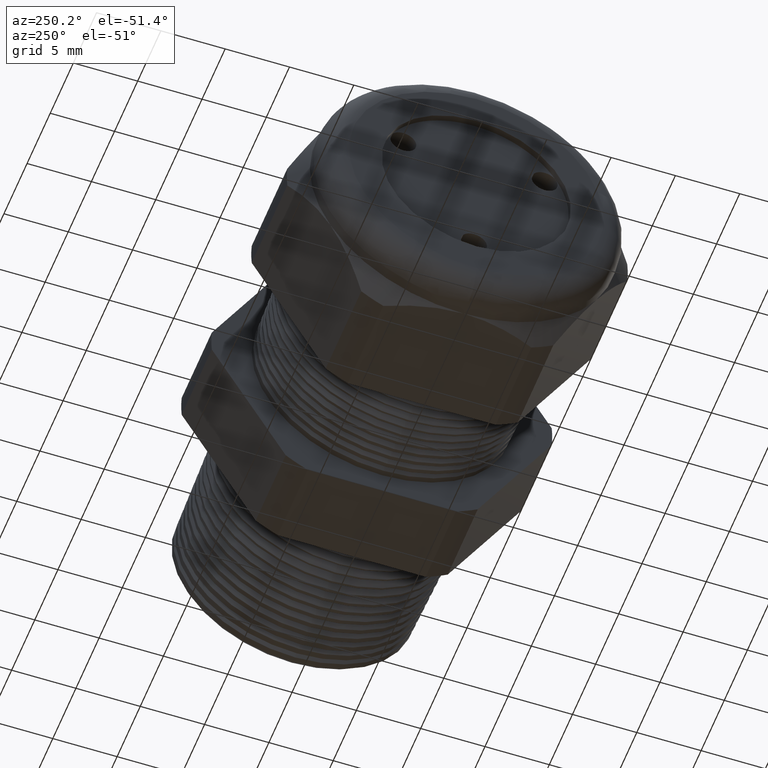
[diagram: clean part render]
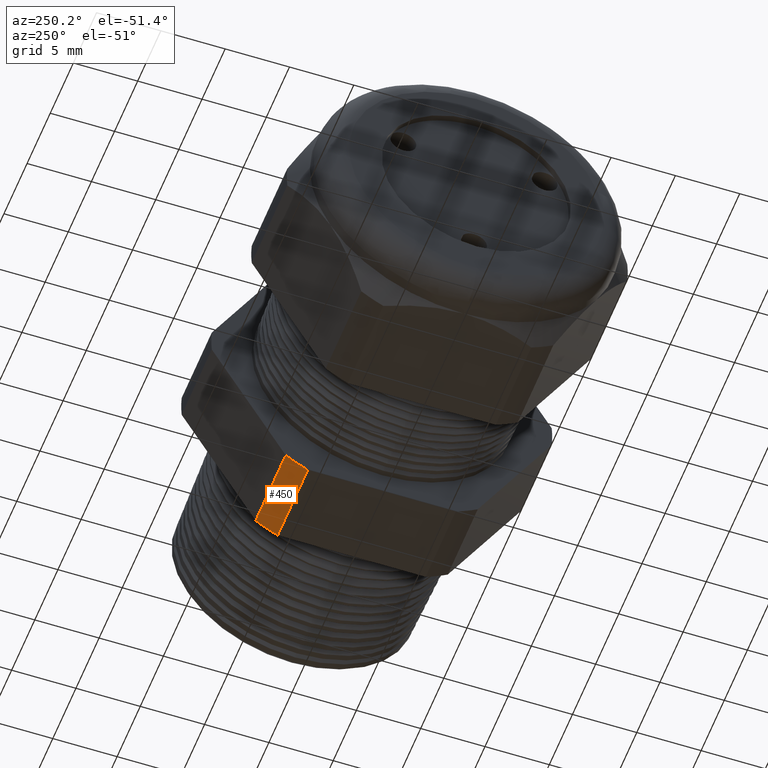
[diagram: same view with one face highlighted and labeled with its STEP entity id]
A machine part, auxiliary view. The second image highlights one B-rep face of the part: STEP entity #450.
In plain terms, the highlighted cylindrical surface (partial cylindrical patch) has radius 13.2512 mm, axis along (-1, 0, 0).
Its self-contained STEP definition (entity closure, byte-faithful):
#382 = VERTEX_POINT ( 'NONE', #2782 ) ;
#437 = VERTEX_POINT ( 'NONE', #2850 ) ;
#439 = EDGE_CURVE ( 'NONE', #437, #382, #2911, .T. ) ;
#446 = EDGE_CURVE ( 'NONE', #382, #447, #2905, .T. ) ;
#447 = VERTEX_POINT ( 'NONE', #2897 ) ;
#450 = ADVANCED_FACE ( 'NONE', ( #2892 ), #2891, .T. ) ;
#451 = EDGE_LOOP ( 'NONE', ( #452, #453, #454, #509 ) ) ;
#452 = ORIENTED_EDGE ( 'NONE', *, *, #446, .F. ) ;
#453 = ORIENTED_EDGE ( 'NONE', *, *, #439, .F. ) ;
#454 = ORIENTED_EDGE ( 'NONE', *, *, #455, .T. ) ;
#455 = EDGE_CURVE ( 'NONE', #437, #456, #2890, .T. ) ;
#456 = VERTEX_POINT ( 'NONE', #2882 ) ;
#509 = ORIENTED_EDGE ( 'NONE', *, *, #510, .F. ) ;
#510 = EDGE_CURVE ( 'NONE', #447, #456, #2980, .T. ) ;
#2782 = CARTESIAN_POINT ( 'NONE',  ( -0.3100000000000000000, 0.2938165587564948700, -0.4310947921287048800 ) ) ;
#2849 = CARTESIAN_POINT ( 'NONE',  ( -0.3100000000000000000, 0.0000000000000000000, 0.0000000000000000000 ) ) ;
#2850 = CARTESIAN_POINT ( 'NONE',  ( -0.3100000000000000000, 0.2264307620443831200, -0.4700000000000000300 ) ) ;
#2882 = CARTESIAN_POINT ( 'NONE',  ( -0.5659055118110235500, 0.2264307620443831200, -0.4700000000000000300 ) ) ;
#2883 = DIRECTION ( 'NONE',  ( -1.000000000000000000, 0.0000000000000000000, 0.0000000000000000000 ) ) ;
#2884 = VECTOR ( 'NONE', #2883, 39.37007874015748100 ) ;
#2885 = CARTESIAN_POINT ( 'NONE',  ( 0.2000000000000000400, 0.2264307620443831200, -0.4700000000000000300 ) ) ;
#2886 = DIRECTION ( 'NONE',  ( 0.0000000000000000000, 0.0000000000000000000, 1.000000000000000000 ) ) ;
#2887 = DIRECTION ( 'NONE',  ( -1.000000000000000000, 0.0000000000000000000, 0.0000000000000000000 ) ) ;
#2888 = CARTESIAN_POINT ( 'NONE',  ( 0.2000000000000000400, 0.0000000000000000000, 0.0000000000000000000 ) ) ;
#2889 = AXIS2_PLACEMENT_3D ( 'NONE', #2888, #2887, #2886 ) ;
#2890 = LINE ( 'NONE', #2885, #2884 ) ;
#2891 = CYLINDRICAL_SURFACE ( 'NONE', #2889, 0.5217000000000000500 ) ;
#2892 = FACE_OUTER_BOUND ( 'NONE', #451, .T. ) ;
#2897 = CARTESIAN_POINT ( 'NONE',  ( -0.5659055118110235500, 0.2938165587564948700, -0.4310947921287048300 ) ) ;
#2898 = DIRECTION ( 'NONE',  ( -1.000000000000000000, 0.0000000000000000000, 0.0000000000000000000 ) ) ;
#2899 = VECTOR ( 'NONE', #2898, 39.37007874015748100 ) ;
#2900 = CARTESIAN_POINT ( 'NONE',  ( 0.2000000000000000400, 0.2938165587564948700, -0.4310947921287048800 ) ) ;
#2905 = LINE ( 'NONE', #2900, #2899 ) ;
#2908 = DIRECTION ( 'NONE',  ( 0.0000000000000000000, 0.0000000000000000000, -1.000000000000000000 ) ) ;
#2909 = DIRECTION ( 'NONE',  ( 1.000000000000000000, 0.0000000000000000000, 0.0000000000000000000 ) ) ;
#2910 = AXIS2_PLACEMENT_3D ( 'NONE', #2849, #2909, #2908 ) ;
#2911 = CIRCLE ( 'NONE', #2910, 0.5217000000000000500 ) ;
#2976 = DIRECTION ( 'NONE',  ( 0.0000000000000000000, 0.0000000000000000000, 1.000000000000000000 ) ) ;
#2977 = DIRECTION ( 'NONE',  ( -1.000000000000000000, 0.0000000000000000000, 0.0000000000000000000 ) ) ;
#2978 = CARTESIAN_POINT ( 'NONE',  ( -0.5659055118110235500, 0.0000000000000000000, 0.0000000000000000000 ) ) ;
#2979 = AXIS2_PLACEMENT_3D ( 'NONE', #2978, #2977, #2976 ) ;
#2980 = CIRCLE ( 'NONE', #2979, 0.5217000000000000500 ) ;